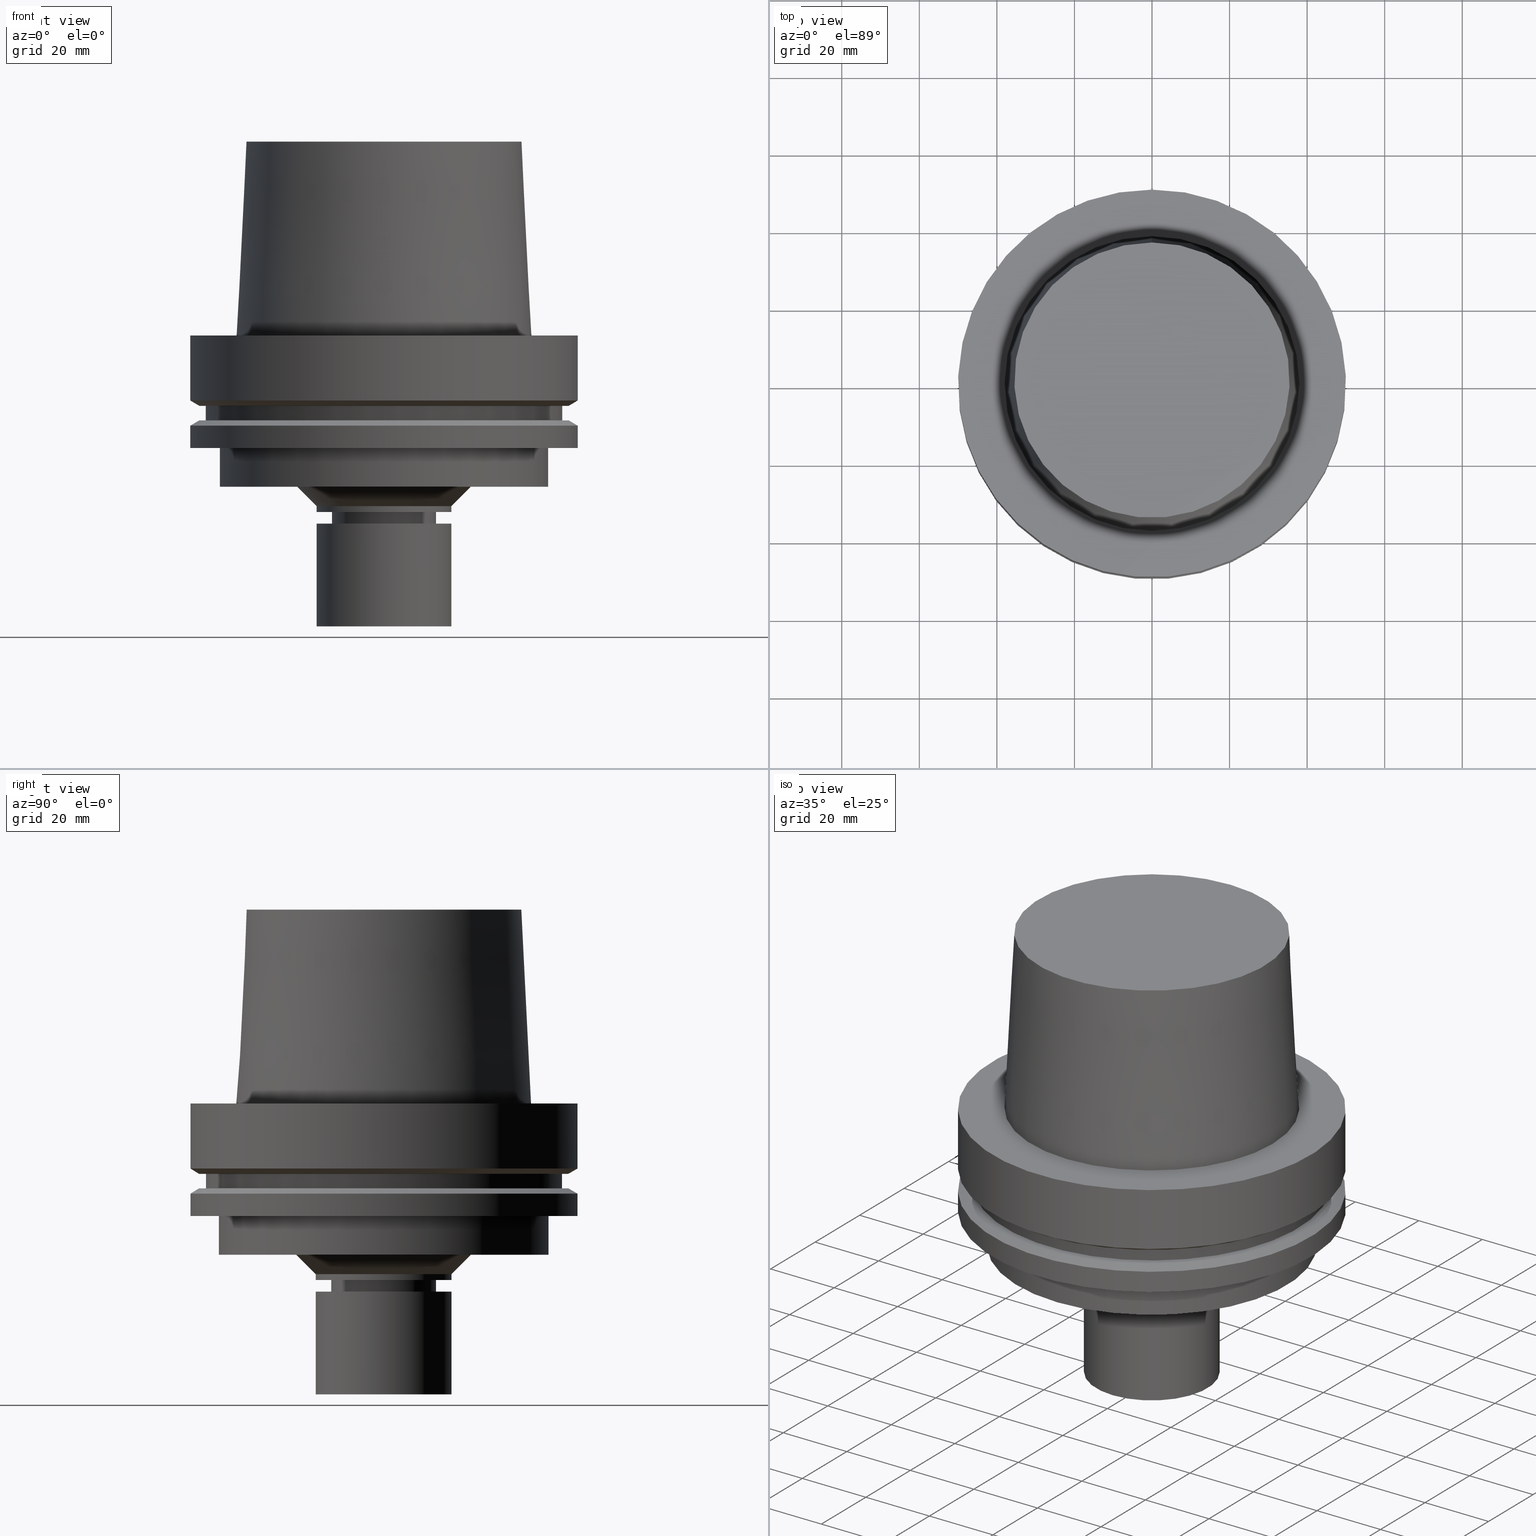
[diagram: canonical four-view strip — front | top / right | iso, engineering-drawing reading convention]
A machine part, canonical four-view strip (front | top / right | iso — engineering-drawing reading convention). The complete STEP part file that produces these views, byte-faithful:
ISO-10303-21;
HEADER;
FILE_DESCRIPTION((''),'1');
FILE_NAME('V:/90_\X2\53D65F9730C730FC30BF\X0\/00_\X2\6DE18DEF30C730FC30BF\X0\/ALL/HSK-BKUS\X2\52A05DE556F3\X0\_201801/HSK-A100-MEGAER/HSK-A100-MEGAER20-75NL.stp','2018-02-01T04:05:06',(''),(''),'Spatial Interop R21 SP3','Kubotek KeyCreator 2011 V10.0.2 (22737)',' ');
FILE_SCHEMA(('automotive_design'));
ENDSEC;
DATA;
#1=MECHANICAL_DESIGN_GEOMETRIC_PRESENTATION_REPRESENTATION(' ',(#14,#15,#16,#17,#18,#19,#20,#21,#22,#23,#24,#25,#26,#27,#28,#29,#30,#31,#32,#33,#34,#35,#36,#37,#38,#39,#40,#41,#42,#43,#44,#45,#46,#47,#48,#49,#50,#51,#52,#53,#54,#55,#56,#57,#58,#59,#60,#61),#10);
#2=PRODUCT_DEFINITION_CONTEXT('',#62,'design');
#3=APPLICATION_PROTOCOL_DEFINITION('INTERNATIONAL STANDARD','automotive_design',1994,#62);
#4=PRODUCT_CATEGORY_RELATIONSHIP('NONE','NONE',#63,#64);
#5=SHAPE_DEFINITION_REPRESENTATION(#65,#66);
#6=PRODUCT_DEFINITION_CONTEXT('',#67,'design');
#7=APPLICATION_PROTOCOL_DEFINITION('INTERNATIONAL STANDARD','automotive_design',1994,#67);
#8=PRODUCT_CATEGORY_RELATIONSHIP('NONE','NONE',#68,#69);
#9=SHAPE_DEFINITION_REPRESENTATION(#70,#71);
#10= (GEOMETRIC_REPRESENTATION_CONTEXT(3)GLOBAL_UNCERTAINTY_ASSIGNED_CONTEXT((#74))GLOBAL_UNIT_ASSIGNED_CONTEXT((#76,#77,#78))REPRESENTATION_CONTEXT('NONE','WORKSPACE'));
#14=STYLED_ITEM('',(#80,#81),#82);
#15=STYLED_ITEM('',(#83),#84);
#16=STYLED_ITEM('',(#85,#86),#87);
#17=STYLED_ITEM('',(#88,#89),#90);
#18=STYLED_ITEM('',(#91,#92),#93);
#19=STYLED_ITEM('',(#94,#95),#96);
#20=STYLED_ITEM('',(#97),#98);
#21=STYLED_ITEM('',(#99,#100),#101);
#22=STYLED_ITEM('',(#102,#103),#104);
#23=STYLED_ITEM('',(#105),#106);
#24=STYLED_ITEM('',(#107),#108);
#25=STYLED_ITEM('',(#109),#110);
#26=STYLED_ITEM('',(#111),#112);
#27=STYLED_ITEM('',(#113,#114),#115);
#28=STYLED_ITEM('',(#116),#117);
#29=STYLED_ITEM('',(#118),#119);
#30=STYLED_ITEM('',(#120,#121),#122);
#31=STYLED_ITEM('',(#123,#124),#125);
#32=STYLED_ITEM('',(#126),#127);
#33=STYLED_ITEM('',(#128,#129),#130);
#34=STYLED_ITEM('',(#131),#132);
#35=STYLED_ITEM('',(#133),#134);
#36=STYLED_ITEM('',(#135,#136),#137);
#37=STYLED_ITEM('',(#138),#139);
#38=STYLED_ITEM('',(#140),#141);
#39=STYLED_ITEM('',(#142,#143),#144);
#40=STYLED_ITEM('',(#145,#146),#147);
#41=STYLED_ITEM('',(#148,#149),#150);
#42=STYLED_ITEM('',(#151,#152),#153);
#43=STYLED_ITEM('',(#154,#155),#156);
#44=STYLED_ITEM('',(#157),#158);
#45=STYLED_ITEM('',(#159),#160);
#46=STYLED_ITEM('',(#161),#162);
#47=STYLED_ITEM('',(#163),#164);
#48=STYLED_ITEM('',(#165),#166);
#49=STYLED_ITEM('',(#167,#168),#169);
#50=STYLED_ITEM('',(#170,#171),#172);
#51=STYLED_ITEM('',(#173),#174);
#52=STYLED_ITEM('',(#175,#176),#177);
#53=STYLED_ITEM('',(#178,#179),#180);
#54=STYLED_ITEM('',(#181),#182);
#55=STYLED_ITEM('',(#183,#184),#185);
#56=STYLED_ITEM('',(#186,#187),#188);
#57=STYLED_ITEM('',(#189,#190),#191);
#58=STYLED_ITEM('',(#192),#193);
#59=STYLED_ITEM('',(#194,#195),#196);
#60=STYLED_ITEM('',(#197),#198);
#61=STYLED_ITEM('',(#199,#200),#201);
#62=APPLICATION_CONTEXT(' ');
#63=PRODUCT_CATEGORY('part','NONE');
#64=PRODUCT_RELATED_PRODUCT_CATEGORY('detail',' ',(#202));
#65=PRODUCT_DEFINITION_SHAPE('NONE','NONE',#203);
#66=ADVANCED_BREP_SHAPE_REPRESENTATION('Unnamed[1]',(#150,#204),#10);
#67=APPLICATION_CONTEXT(' ');
#68=PRODUCT_CATEGORY('part','NONE');
#69=PRODUCT_RELATED_PRODUCT_CATEGORY('detail',' ',(#205));
#70=PRODUCT_DEFINITION_SHAPE('NONE','NONE',#206);
#71=ADVANCED_BREP_SHAPE_REPRESENTATION('Unnamed[1]',(#191,#207),#10);
#74=UNCERTAINTY_MEASURE_WITH_UNIT(LENGTH_MEASURE(1.0E-006),#76,'','');
#76= (CONVERSION_BASED_UNIT('MILLIMETRE',#210)LENGTH_UNIT()NAMED_UNIT(#213));
#77= (NAMED_UNIT(#215)PLANE_ANGLE_UNIT()SI_UNIT($,.RADIAN.));
#78= (NAMED_UNIT(#215)SOLID_ANGLE_UNIT()SI_UNIT($,.STERADIAN.));
#80=PRESENTATION_STYLE_ASSIGNMENT((#221));
#81=PRESENTATION_STYLE_ASSIGNMENT((#222));
#82=ADVANCED_FACE('Unnamed[1]',(#223,#224),#225,.T.);
#83=PRESENTATION_STYLE_ASSIGNMENT((#226));
#84=EDGE_CURVE('Unnamed[1]',#227,#227,#228,.T.);
#85=PRESENTATION_STYLE_ASSIGNMENT((#229));
#86=PRESENTATION_STYLE_ASSIGNMENT((#230));
#87=ADVANCED_FACE('Unnamed[1]',(#231),#232,.T.);
#88=PRESENTATION_STYLE_ASSIGNMENT((#233));
#89=PRESENTATION_STYLE_ASSIGNMENT((#234));
#90=ADVANCED_FACE('Unnamed[1]',(#235,#236),#237,.T.);
#91=PRESENTATION_STYLE_ASSIGNMENT((#238));
#92=PRESENTATION_STYLE_ASSIGNMENT((#239));
#93=ADVANCED_FACE('Unnamed[1]',(#240,#241),#242,.T.);
#94=PRESENTATION_STYLE_ASSIGNMENT((#243));
#95=PRESENTATION_STYLE_ASSIGNMENT((#244));
#96=ADVANCED_FACE('Unnamed[1]',(#245,#246),#247,.T.);
#97=PRESENTATION_STYLE_ASSIGNMENT((#248));
#98=EDGE_CURVE('Unnamed[1]',#249,#249,#250,.T.);
#99=PRESENTATION_STYLE_ASSIGNMENT((#251));
#100=PRESENTATION_STYLE_ASSIGNMENT((#252));
#101=ADVANCED_FACE('Unnamed[1]',(#253),#254,.T.);
#102=PRESENTATION_STYLE_ASSIGNMENT((#255));
#103=PRESENTATION_STYLE_ASSIGNMENT((#256));
#104=ADVANCED_FACE('Unnamed[1]',(#257,#258),#259,.T.);
#105=PRESENTATION_STYLE_ASSIGNMENT((#260));
#106=EDGE_CURVE('Unnamed[1]',#261,#261,#262,.T.);
#107=PRESENTATION_STYLE_ASSIGNMENT((#263));
#108=EDGE_CURVE('Unnamed[1]',#264,#264,#265,.T.);
#109=PRESENTATION_STYLE_ASSIGNMENT((#266));
#110=EDGE_CURVE('Unnamed[1]',#267,#267,#268,.T.);
#111=PRESENTATION_STYLE_ASSIGNMENT((#269));
#112=EDGE_CURVE('Unnamed[1]',#270,#270,#271,.T.);
#113=PRESENTATION_STYLE_ASSIGNMENT((#272));
#114=PRESENTATION_STYLE_ASSIGNMENT((#273));
#115=ADVANCED_FACE('Unnamed[1]',(#274,#275),#276,.T.);
#116=PRESENTATION_STYLE_ASSIGNMENT((#277));
#117=EDGE_CURVE('Unnamed[1]',#278,#278,#279,.T.);
#118=PRESENTATION_STYLE_ASSIGNMENT((#280));
#119=EDGE_CURVE('Unnamed[1]',#281,#281,#282,.T.);
#120=PRESENTATION_STYLE_ASSIGNMENT((#283));
#121=PRESENTATION_STYLE_ASSIGNMENT((#284));
#122=ADVANCED_FACE('Unnamed[1]',(#285),#286,.T.);
#123=PRESENTATION_STYLE_ASSIGNMENT((#287));
#124=PRESENTATION_STYLE_ASSIGNMENT((#288));
#125=ADVANCED_FACE('Unnamed[1]',(#289,#290),#291,.T.);
#126=PRESENTATION_STYLE_ASSIGNMENT((#292));
#127=EDGE_CURVE('Unnamed[1]',#293,#293,#294,.T.);
#128=PRESENTATION_STYLE_ASSIGNMENT((#295));
#129=PRESENTATION_STYLE_ASSIGNMENT((#296));
#130=ADVANCED_FACE('Unnamed[1]',(#297,#298),#299,.T.);
#131=PRESENTATION_STYLE_ASSIGNMENT((#300));
#132=EDGE_CURVE('Unnamed[1]',#301,#301,#302,.T.);
#133=PRESENTATION_STYLE_ASSIGNMENT((#303));
#134=EDGE_CURVE('Unnamed[1]',#304,#304,#305,.T.);
#135=PRESENTATION_STYLE_ASSIGNMENT((#306));
#136=PRESENTATION_STYLE_ASSIGNMENT((#307));
#137=ADVANCED_FACE('Unnamed[1]',(#308,#309),#310,.T.);
#138=PRESENTATION_STYLE_ASSIGNMENT((#311));
#139=EDGE_CURVE('Unnamed[1]',#312,#312,#313,.T.);
#140=PRESENTATION_STYLE_ASSIGNMENT((#314));
#141=EDGE_CURVE('Unnamed[1]',#315,#315,#316,.T.);
#142=PRESENTATION_STYLE_ASSIGNMENT((#317));
#143=PRESENTATION_STYLE_ASSIGNMENT((#318));
#144=ADVANCED_FACE('Unnamed[1]',(#319,#320),#321,.T.);
#145=PRESENTATION_STYLE_ASSIGNMENT((#322));
#146=PRESENTATION_STYLE_ASSIGNMENT((#323));
#147=ADVANCED_FACE('Unnamed[1]',(#324,#325),#326,.T.);
#148=PRESENTATION_STYLE_ASSIGNMENT((#327));
#149=PRESENTATION_STYLE_ASSIGNMENT((#328));
#150=MANIFOLD_SOLID_BREP('Unnamed[1]',#329);
#151=PRESENTATION_STYLE_ASSIGNMENT((#330));
#152=PRESENTATION_STYLE_ASSIGNMENT((#331));
#153=ADVANCED_FACE('Unnamed[1]',(#332),#333,.T.);
#154=PRESENTATION_STYLE_ASSIGNMENT((#334));
#155=PRESENTATION_STYLE_ASSIGNMENT((#335));
#156=ADVANCED_FACE('Unnamed[1]',(#336,#337),#338,.T.);
#157=PRESENTATION_STYLE_ASSIGNMENT((#339));
#158=EDGE_CURVE('Unnamed[1]',#340,#340,#341,.T.);
#159=PRESENTATION_STYLE_ASSIGNMENT((#342));
#160=EDGE_CURVE('Unnamed[1]',#343,#343,#344,.T.);
#161=PRESENTATION_STYLE_ASSIGNMENT((#345));
#162=EDGE_CURVE('Unnamed[1]',#346,#346,#347,.T.);
#163=PRESENTATION_STYLE_ASSIGNMENT((#348));
#164=EDGE_CURVE('Unnamed[1]',#349,#349,#350,.T.);
#165=PRESENTATION_STYLE_ASSIGNMENT((#351));
#166=EDGE_CURVE('Unnamed[1]',#352,#352,#353,.T.);
#167=PRESENTATION_STYLE_ASSIGNMENT((#354));
#168=PRESENTATION_STYLE_ASSIGNMENT((#355));
#169=ADVANCED_FACE('Unnamed[1]',(#356,#357),#358,.T.);
#170=PRESENTATION_STYLE_ASSIGNMENT((#359));
#171=PRESENTATION_STYLE_ASSIGNMENT((#360));
#172=ADVANCED_FACE('Unnamed[1]',(#361,#362),#363,.T.);
#173=PRESENTATION_STYLE_ASSIGNMENT((#364));
#174=EDGE_CURVE('Unnamed[1]',#365,#365,#366,.T.);
#175=PRESENTATION_STYLE_ASSIGNMENT((#367));
#176=PRESENTATION_STYLE_ASSIGNMENT((#368));
#177=ADVANCED_FACE('Unnamed[1]',(#369,#370),#371,.T.);
#178=PRESENTATION_STYLE_ASSIGNMENT((#372));
#179=PRESENTATION_STYLE_ASSIGNMENT((#373));
#180=ADVANCED_FACE('Unnamed[1]',(#374,#375),#376,.T.);
#181=PRESENTATION_STYLE_ASSIGNMENT((#377));
#182=EDGE_CURVE('Unnamed[1]',#378,#378,#379,.T.);
#183=PRESENTATION_STYLE_ASSIGNMENT((#380));
#184=PRESENTATION_STYLE_ASSIGNMENT((#381));
#185=ADVANCED_FACE('Unnamed[1]',(#382,#383),#384,.T.);
#186=PRESENTATION_STYLE_ASSIGNMENT((#385));
#187=PRESENTATION_STYLE_ASSIGNMENT((#386));
#188=ADVANCED_FACE('Unnamed[1]',(#387,#388),#389,.T.);
#189=PRESENTATION_STYLE_ASSIGNMENT((#390));
#190=PRESENTATION_STYLE_ASSIGNMENT((#391));
#191=MANIFOLD_SOLID_BREP('Unnamed[1]',#392);
#192=PRESENTATION_STYLE_ASSIGNMENT((#393));
#193=EDGE_CURVE('Unnamed[1]',#394,#394,#395,.T.);
#194=PRESENTATION_STYLE_ASSIGNMENT((#396));
#195=PRESENTATION_STYLE_ASSIGNMENT((#397));
#196=ADVANCED_FACE('Unnamed[1]',(#398,#399),#400,.T.);
#197=PRESENTATION_STYLE_ASSIGNMENT((#401));
#198=EDGE_CURVE('Unnamed[1]',#402,#402,#403,.T.);
#199=PRESENTATION_STYLE_ASSIGNMENT((#404));
#200=PRESENTATION_STYLE_ASSIGNMENT((#405));
#201=ADVANCED_FACE('Unnamed[1]',(#406,#407),#408,.T.);
#202=PRODUCT('Unnamed[1]','Unnamed[1]','PART-Unnamed[1]-DESC',(#409));
#203=PRODUCT_DEFINITION('NONE','NONE',#410,#2);
#204=AXIS2_PLACEMENT_3D('',#411,#412,#413);
#205=PRODUCT('Unnamed[1]','Unnamed[1]','PART-Unnamed[1]-DESC',(#414));
#206=PRODUCT_DEFINITION('NONE','NONE',#415,#6);
#207=AXIS2_PLACEMENT_3D('',#416,#417,#418);
#210=LENGTH_MEASURE_WITH_UNIT(LENGTH_MEASURE(1.0),#419);
#213=DIMENSIONAL_EXPONENTS(1.0,0.0,0.0,0.0,0.0,0.0,0.0);
#215=DIMENSIONAL_EXPONENTS(0.0,0.0,0.0,0.0,0.0,0.0,0.0);
#221=SURFACE_STYLE_USAGE(.BOTH.,#420);
#222=CURVE_STYLE('',#421,POSITIVE_LENGTH_MEASURE(1000.0),#422);
#223=FACE_BOUND('',#423,.T.);
#224=FACE_BOUND('',#424,.T.);
#225=CYLINDRICAL_SURFACE('',#425,50.0);
#226=CURVE_STYLE('',#426,POSITIVE_LENGTH_MEASURE(1000.0),#427);
#227=VERTEX_POINT('',#428);
#228=CIRCLE('',#429,46.0);
#229=SURFACE_STYLE_USAGE(.BOTH.,#430);
#230=CURVE_STYLE('',#431,POSITIVE_LENGTH_MEASURE(1000.0),#432);
#231=FACE_OUTER_BOUND('',#433,.T.);
#232=PLANE('',#434);
#233=SURFACE_STYLE_USAGE(.BOTH.,#435);
#234=CURVE_STYLE('',#436,POSITIVE_LENGTH_MEASURE(1000.0),#437);
#235=FACE_BOUND('',#438,.T.);
#236=FACE_BOUND('',#439,.T.);
#237=CONICAL_SURFACE('',#440,13.0000000000002,1.04719755119485);
#238=SURFACE_STYLE_USAGE(.BOTH.,#441);
#239=CURVE_STYLE('',#442,POSITIVE_LENGTH_MEASURE(1000.0),#443);
#240=FACE_BOUND('',#444,.T.);
#241=FACE_BOUND('',#445,.T.);
#242=CONICAL_SURFACE('',#446,48.81129763,1.04719755328238);
#243=SURFACE_STYLE_USAGE(.BOTH.,#447);
#244=CURVE_STYLE('',#448,POSITIVE_LENGTH_MEASURE(1000.0),#449);
#245=FACE_BOUND('',#450,.T.);
#246=FACE_BOUND('',#451,.T.);
#247=CYLINDRICAL_SURFACE('',#452,50.0);
#248=CURVE_STYLE('',#453,POSITIVE_LENGTH_MEASURE(1000.0),#454);
#249=VERTEX_POINT('',#455);
#250=CIRCLE('',#456,22.4999999999999);
#251=SURFACE_STYLE_USAGE(.BOTH.,#457);
#252=CURVE_STYLE('',#458,POSITIVE_LENGTH_MEASURE(1000.0),#459);
#253=FACE_OUTER_BOUND('',#460,.T.);
#254=PLANE('',#461);
#255=SURFACE_STYLE_USAGE(.BOTH.,#462);
#256=CURVE_STYLE('',#463,POSITIVE_LENGTH_MEASURE(1000.0),#464);
#257=FACE_BOUND('',#465,.T.);
#258=FACE_OUTER_BOUND('',#466,.T.);
#259=PLANE('',#467);
#260=CURVE_STYLE('',#468,POSITIVE_LENGTH_MEASURE(1000.0),#469);
#261=VERTEX_POINT('',#470);
#262=CIRCLE('',#471,42.5);
#263=CURVE_STYLE('',#472,POSITIVE_LENGTH_MEASURE(1000.0),#473);
#264=VERTEX_POINT('',#474);
#265=CIRCLE('',#475,42.5);
#266=CURVE_STYLE('',#476,POSITIVE_LENGTH_MEASURE(1000.0),#477);
#267=VERTEX_POINT('',#478);
#268=CIRCLE('',#479,37.9999999999349);
#269=CURVE_STYLE('',#480,POSITIVE_LENGTH_MEASURE(1000.0),#481);
#270=VERTEX_POINT('',#482);
#271=CIRCLE('',#483,17.4999999999999);
#272=SURFACE_STYLE_USAGE(.BOTH.,#484);
#273=CURVE_STYLE('',#485,POSITIVE_LENGTH_MEASURE(1000.0),#486);
#274=FACE_BOUND('',#487,.T.);
#275=FACE_BOUND('',#488,.T.);
#276=CONICAL_SURFACE('',#489,36.7500000007484,0.0499583956894843);
#277=CURVE_STYLE('',#490,POSITIVE_LENGTH_MEASURE(1000.0),#491);
#278=VERTEX_POINT('',#492);
#279=CIRCLE('',#493,12.4999999999998);
#280=CURVE_STYLE('',#494,POSITIVE_LENGTH_MEASURE(1000.0),#495);
#281=VERTEX_POINT('',#496);
#282=CIRCLE('',#497,12.4999999999999);
#283=SURFACE_STYLE_USAGE(.BOTH.,#498);
#284=CURVE_STYLE('',#499,POSITIVE_LENGTH_MEASURE(1000.0),#500);
#285=FACE_OUTER_BOUND('',#501,.T.);
#286=PLANE('',#502);
#287=SURFACE_STYLE_USAGE(.BOTH.,#503);
#288=CURVE_STYLE('',#504,POSITIVE_LENGTH_MEASURE(1000.0),#505);
#289=FACE_BOUND('',#506,.T.);
#290=FACE_BOUND('',#507,.T.);
#291=CYLINDRICAL_SURFACE('',#508,46.0);
#292=CURVE_STYLE('',#509,POSITIVE_LENGTH_MEASURE(1000.0),#510);
#293=VERTEX_POINT('',#511);
#294=CIRCLE('',#512,11.3999999999978);
#295=SURFACE_STYLE_USAGE(.BOTH.,#513);
#296=CURVE_STYLE('',#514,POSITIVE_LENGTH_MEASURE(1000.0),#515);
#297=FACE_OUTER_BOUND('',#516,.T.);
#298=FACE_BOUND('',#517,.T.);
#299=PLANE('',#518);
#300=CURVE_STYLE('',#519,POSITIVE_LENGTH_MEASURE(1000.0),#520);
#301=VERTEX_POINT('',#521);
#302=CIRCLE('',#522,50.0);
#303=CURVE_STYLE('',#523,POSITIVE_LENGTH_MEASURE(1000.0),#524);
#304=VERTEX_POINT('',#525);
#305=CIRCLE('',#526,47.62259526);
#306=SURFACE_STYLE_USAGE(.BOTH.,#527);
#307=CURVE_STYLE('',#528,POSITIVE_LENGTH_MEASURE(1000.0),#529);
#308=FACE_BOUND('',#530,.T.);
#309=FACE_BOUND('',#531,.T.);
#310=CYLINDRICAL_SURFACE('',#532,17.4999999999999);
#311=CURVE_STYLE('',#533,POSITIVE_LENGTH_MEASURE(1000.0),#534);
#312=VERTEX_POINT('',#535);
#313=CIRCLE('',#536,50.0);
#314=CURVE_STYLE('',#537,POSITIVE_LENGTH_MEASURE(1000.0),#538);
#315=VERTEX_POINT('',#539);
#316=CIRCLE('',#540,13.5000000000005);
#317=SURFACE_STYLE_USAGE(.BOTH.,#541);
#318=CURVE_STYLE('',#542,POSITIVE_LENGTH_MEASURE(1000.0),#543);
#319=FACE_BOUND('',#544,.T.);
#320=FACE_OUTER_BOUND('',#545,.T.);
#321=PLANE('',#546);
#322=SURFACE_STYLE_USAGE(.BOTH.,#547);
#323=CURVE_STYLE('',#548,POSITIVE_LENGTH_MEASURE(1000.0),#549);
#324=FACE_BOUND('',#550,.T.);
#325=FACE_OUTER_BOUND('',#551,.T.);
#326=PLANE('',#552);
#327=SURFACE_STYLE_USAGE(.BOTH.,#553);
#328=CURVE_STYLE('',#554,POSITIVE_LENGTH_MEASURE(1000.0),#555);
#329=CLOSED_SHELL('',(#153,#115,#177,#82,#93,#156,#125,#130,#188,#96,#104,#180,#147,#196,#137,#144,#185,#90,#172,#169,#101));
#330=SURFACE_STYLE_USAGE(.BOTH.,#556);
#331=CURVE_STYLE('',#557,POSITIVE_LENGTH_MEASURE(1000.0),#558);
#332=FACE_OUTER_BOUND('',#559,.T.);
#333=PLANE('',#560);
#334=SURFACE_STYLE_USAGE(.BOTH.,#561);
#335=CURVE_STYLE('',#562,POSITIVE_LENGTH_MEASURE(1000.0),#563);
#336=FACE_BOUND('',#564,.T.);
#337=FACE_OUTER_BOUND('',#565,.T.);
#338=PLANE('',#566);
#339=CURVE_STYLE('',#567,POSITIVE_LENGTH_MEASURE(1000.0),#568);
#340=VERTEX_POINT('',#569);
#341=CIRCLE('',#570,50.0);
#342=CURVE_STYLE('',#571,POSITIVE_LENGTH_MEASURE(1000.0),#572);
#343=VERTEX_POINT('',#573);
#344=CIRCLE('',#574,17.5);
#345=CURVE_STYLE('',#575,POSITIVE_LENGTH_MEASURE(1000.0),#576);
#346=VERTEX_POINT('',#577);
#347=CIRCLE('',#578,50.0);
#348=CURVE_STYLE('',#579,POSITIVE_LENGTH_MEASURE(1000.0),#580);
#349=VERTEX_POINT('',#581);
#350=CIRCLE('',#582,47.62259526);
#351=CURVE_STYLE('',#583,POSITIVE_LENGTH_MEASURE(1000.0),#584);
#352=VERTEX_POINT('',#585);
#353=CIRCLE('',#586,13.4999999999908);
#354=SURFACE_STYLE_USAGE(.BOTH.,#587);
#355=CURVE_STYLE('',#588,POSITIVE_LENGTH_MEASURE(1000.0),#589);
#356=FACE_BOUND('',#590,.T.);
#357=FACE_BOUND('',#591,.T.);
#358=CONICAL_SURFACE('',#592,11.9499999999988,0.52359877559866);
#359=SURFACE_STYLE_USAGE(.BOTH.,#593);
#360=CURVE_STYLE('',#594,POSITIVE_LENGTH_MEASURE(1000.0),#595);
#361=FACE_BOUND('',#596,.T.);
#362=FACE_BOUND('',#597,.T.);
#363=CYLINDRICAL_SURFACE('',#598,12.4999999999999);
#364=CURVE_STYLE('',#599,POSITIVE_LENGTH_MEASURE(1000.0),#600);
#365=VERTEX_POINT('',#601);
#366=CIRCLE('',#602,17.5);
#367=SURFACE_STYLE_USAGE(.BOTH.,#603);
#368=CURVE_STYLE('',#604,POSITIVE_LENGTH_MEASURE(1000.0),#605);
#369=FACE_OUTER_BOUND('',#606,.T.);
#370=FACE_BOUND('',#607,.T.);
#371=PLANE('',#608);
#372=SURFACE_STYLE_USAGE(.BOTH.,#609);
#373=CURVE_STYLE('',#610,POSITIVE_LENGTH_MEASURE(1000.0),#611);
#374=FACE_BOUND('',#612,.T.);
#375=FACE_BOUND('',#613,.T.);
#376=CYLINDRICAL_SURFACE('',#614,42.5);
#377=CURVE_STYLE('',#615,POSITIVE_LENGTH_MEASURE(1000.0),#616);
#378=VERTEX_POINT('',#617);
#379=CIRCLE('',#618,17.5);
#380=SURFACE_STYLE_USAGE(.BOTH.,#619);
#381=CURVE_STYLE('',#620,POSITIVE_LENGTH_MEASURE(1000.0),#621);
#382=FACE_BOUND('',#622,.T.);
#383=FACE_BOUND('',#623,.T.);
#384=CYLINDRICAL_SURFACE('',#624,13.4999999999956);
#385=SURFACE_STYLE_USAGE(.BOTH.,#625);
#386=CURVE_STYLE('',#626,POSITIVE_LENGTH_MEASURE(1000.0),#627);
#387=FACE_BOUND('',#628,.T.);
#388=FACE_BOUND('',#629,.T.);
#389=CONICAL_SURFACE('',#630,48.81129763,1.04719755328238);
#390=SURFACE_STYLE_USAGE(.BOTH.,#631);
#391=CURVE_STYLE('',#632,POSITIVE_LENGTH_MEASURE(1000.0),#633);
#392=CLOSED_SHELL('',(#122,#87,#201));
#393=CURVE_STYLE('',#634,POSITIVE_LENGTH_MEASURE(1000.0),#635);
#394=VERTEX_POINT('',#636);
#395=CIRCLE('',#637,35.5000000015618);
#396=SURFACE_STYLE_USAGE(.BOTH.,#638);
#397=CURVE_STYLE('',#639,POSITIVE_LENGTH_MEASURE(1000.0),#640);
#398=FACE_BOUND('',#641,.T.);
#399=FACE_BOUND('',#642,.T.);
#400=CONICAL_SURFACE('',#643,19.9999999999999,0.785398163397451);
#401=CURVE_STYLE('',#644,POSITIVE_LENGTH_MEASURE(1000.0),#645);
#402=VERTEX_POINT('',#646);
#403=CIRCLE('',#647,46.0);
#404=SURFACE_STYLE_USAGE(.BOTH.,#648);
#405=CURVE_STYLE('',#649,POSITIVE_LENGTH_MEASURE(1000.0),#650);
#406=FACE_BOUND('',#651,.T.);
#407=FACE_BOUND('',#652,.T.);
#408=CYLINDRICAL_SURFACE('',#653,17.5);
#409=PRODUCT_CONTEXT('',#62,'mechanical');
#410=PRODUCT_DEFINITION_FORMATION_WITH_SPECIFIED_SOURCE(' ','NONE',#202,.NOT_KNOWN.);
#411=CARTESIAN_POINT('',(0.0,0.0,0.0));
#412=DIRECTION('',(0.0,0.0,1.0));
#413=DIRECTION('',(1.0,0.0,0.0));
#414=PRODUCT_CONTEXT('',#67,'mechanical');
#415=PRODUCT_DEFINITION_FORMATION_WITH_SPECIFIED_SOURCE(' ','NONE',#205,.NOT_KNOWN.);
#416=CARTESIAN_POINT('',(0.0,0.0,0.0));
#417=DIRECTION('',(0.0,0.0,1.0));
#418=DIRECTION('',(1.0,0.0,0.0));
#419= (NAMED_UNIT(#213)LENGTH_UNIT()SI_UNIT(.MILLI.,.METRE.));
#420=SURFACE_SIDE_STYLE('',(#655));
#421=DRAUGHTING_PRE_DEFINED_CURVE_FONT('continuous');
#422=COLOUR_RGB('',0.0,1.0,0.0);
#423=EDGE_LOOP('',(#656));
#424=EDGE_LOOP('',(#657));
#425=AXIS2_PLACEMENT_3D('',#658,#659,#660);
#426=DRAUGHTING_PRE_DEFINED_CURVE_FONT('continuous');
#427=COLOUR_RGB('',0.0,1.0,0.0);
#428=CARTESIAN_POINT('',(1.10983616172729E-015,46.0,-18.125));
#429=AXIS2_PLACEMENT_3D('',#661,#662,#663);
#430=SURFACE_SIDE_STYLE('',(#664));
#431=DRAUGHTING_PRE_DEFINED_CURVE_FONT('continuous');
#432=COLOUR_RGB('',0.0,1.0,0.0);
#433=EDGE_LOOP('',(#665));
#434=AXIS2_PLACEMENT_3D('',#666,#667,#668);
#435=SURFACE_SIDE_STYLE('',(#669));
#436=DRAUGHTING_PRE_DEFINED_CURVE_FONT('continuous');
#437=COLOUR_RGB('',0.0,1.0,0.0);
#438=EDGE_LOOP('',(#670));
#439=EDGE_LOOP('',(#671));
#440=AXIS2_PLACEMENT_3D('',#672,#673,#674);
#441=SURFACE_SIDE_STYLE('',(#675));
#442=DRAUGHTING_PRE_DEFINED_CURVE_FONT('continuous');
#443=COLOUR_RGB('',0.0,1.0,0.0);
#444=EDGE_LOOP('',(#676));
#445=EDGE_LOOP('',(#677));
#446=AXIS2_PLACEMENT_3D('',#678,#679,#680);
#447=SURFACE_SIDE_STYLE('',(#681));
#448=DRAUGHTING_PRE_DEFINED_CURVE_FONT('continuous');
#449=COLOUR_RGB('',0.0,1.0,0.0);
#450=EDGE_LOOP('',(#682));
#451=EDGE_LOOP('',(#683));
#452=AXIS2_PLACEMENT_3D('',#684,#685,#686);
#453=DRAUGHTING_PRE_DEFINED_CURVE_FONT('continuous');
#454=COLOUR_RGB('',0.0,1.0,0.0);
#455=CARTESIAN_POINT('',(2.38806125833734E-015,22.4999999999999,-39.0));
#456=AXIS2_PLACEMENT_3D('',#687,#688,#689);
#457=SURFACE_SIDE_STYLE('',(#690));
#458=DRAUGHTING_PRE_DEFINED_CURVE_FONT('continuous');
#459=COLOUR_RGB('',0.0,1.0,0.0);
#460=EDGE_LOOP('',(#691));
#461=AXIS2_PLACEMENT_3D('',#692,#693,#694);
#462=SURFACE_SIDE_STYLE('',(#695));
#463=DRAUGHTING_PRE_DEFINED_CURVE_FONT('continuous');
#464=COLOUR_RGB('',0.0,1.0,0.0);
#465=EDGE_LOOP('',(#696));
#466=EDGE_LOOP('',(#697));
#467=AXIS2_PLACEMENT_3D('',#698,#699,#700);
#468=DRAUGHTING_PRE_DEFINED_CURVE_FONT('continuous');
#469=COLOUR_RGB('',0.0,1.0,0.0);
#470=CARTESIAN_POINT('',(1.77573785876366E-015,42.5,-29.0));
#471=AXIS2_PLACEMENT_3D('',#701,#702,#703);
#472=DRAUGHTING_PRE_DEFINED_CURVE_FONT('continuous');
#473=COLOUR_RGB('',0.0,1.0,0.0);
#474=CARTESIAN_POINT('',(2.38806125833734E-015,42.5,-39.0));
#475=AXIS2_PLACEMENT_3D('',#704,#705,#706);
#476=DRAUGHTING_PRE_DEFINED_CURVE_FONT('continuous');
#477=COLOUR_RGB('',0.0,1.0,0.0);
#478=CARTESIAN_POINT('',(-3.3636548776863E-032,37.9999999999349,-2.44634216324803E-015));
#479=AXIS2_PLACEMENT_3D('',#707,#708,#709);
#480=DRAUGHTING_PRE_DEFINED_CURVE_FONT('continuous');
#481=COLOUR_RGB('',0.0,1.0,0.0);
#482=CARTESIAN_POINT('',(2.69422295812418E-015,17.4999999999999,-44.0));
#483=AXIS2_PLACEMENT_3D('',#710,#711,#712);
#484=SURFACE_SIDE_STYLE('',(#713));
#485=DRAUGHTING_PRE_DEFINED_CURVE_FONT('continuous');
#486=COLOUR_RGB('',0.0,1.0,0.0);
#487=EDGE_LOOP('',(#714));
#488=EDGE_LOOP('',(#715));
#489=AXIS2_PLACEMENT_3D('',#716,#717,#718);
#490=DRAUGHTING_PRE_DEFINED_CURVE_FONT('continuous');
#491=COLOUR_RGB('',0.0,1.0,0.0);
#492=CARTESIAN_POINT('',(3.87568528896053E-015,12.4999999999998,-63.2947441116726));
#493=AXIS2_PLACEMENT_3D('',#719,#720,#721);
#494=DRAUGHTING_PRE_DEFINED_CURVE_FONT('continuous');
#495=COLOUR_RGB('',0.0,1.0,0.0);
#496=CARTESIAN_POINT('',(3.17793855151861E-015,12.4999999999999,-51.8996751345975));
#497=AXIS2_PLACEMENT_3D('',#722,#723,#724);
#498=SURFACE_SIDE_STYLE('',(#725));
#499=DRAUGHTING_PRE_DEFINED_CURVE_FONT('continuous');
#500=COLOUR_RGB('',0.0,1.0,0.0);
#501=EDGE_LOOP('',(#726));
#502=AXIS2_PLACEMENT_3D('',#727,#728,#729);
#503=SURFACE_SIDE_STYLE('',(#730));
#504=DRAUGHTING_PRE_DEFINED_CURVE_FONT('continuous');
#505=COLOUR_RGB('',0.0,1.0,0.0);
#506=EDGE_LOOP('',(#731));
#507=EDGE_LOOP('',(#732));
#508=AXIS2_PLACEMENT_3D('',#733,#734,#735);
#509=DRAUGHTING_PRE_DEFINED_CURVE_FONT('continuous');
#510=COLOUR_RGB('',0.0,1.0,0.0);
#511=CARTESIAN_POINT('',(3.99234856522039E-015,11.3999999999978,-65.2000000000003));
#512=AXIS2_PLACEMENT_3D('',#736,#737,#738);
#513=SURFACE_SIDE_STYLE('',(#739));
#514=DRAUGHTING_PRE_DEFINED_CURVE_FONT('continuous');
#515=COLOUR_RGB('',0.0,1.0,0.0);
#516=EDGE_LOOP('',(#740));
#517=EDGE_LOOP('',(#741));
#518=AXIS2_PLACEMENT_3D('',#742,#743,#744);
#519=DRAUGHTING_PRE_DEFINED_CURVE_FONT('continuous');
#520=COLOUR_RGB('',0.0,1.0,0.0);
#521=CARTESIAN_POINT('',(1.0257889421431E-015,50.0,-16.75240474));
#522=AXIS2_PLACEMENT_3D('',#745,#746,#747);
#523=DRAUGHTING_PRE_DEFINED_CURVE_FONT('continuous');
#524=COLOUR_RGB('',0.0,1.0,0.0);
#525=CARTESIAN_POINT('',(1.10983616172729E-015,47.62259526,-18.125));
#526=AXIS2_PLACEMENT_3D('',#748,#749,#750);
#527=SURFACE_SIDE_STYLE('',(#751));
#528=DRAUGHTING_PRE_DEFINED_CURVE_FONT('continuous');
#529=COLOUR_RGB('',0.0,1.0,0.0);
#530=EDGE_LOOP('',(#752));
#531=EDGE_LOOP('',(#753));
#532=AXIS2_PLACEMENT_3D('',#754,#755,#756);
#533=DRAUGHTING_PRE_DEFINED_CURVE_FONT('continuous');
#534=COLOUR_RGB('',0.0,1.0,0.0);
#535=CARTESIAN_POINT('',(1.77573785876366E-015,50.0,-29.0));
#536=AXIS2_PLACEMENT_3D('',#757,#758,#759);
#537=DRAUGHTING_PRE_DEFINED_CURVE_FONT('continuous');
#538=COLOUR_RGB('',0.0,1.0,0.0);
#539=CARTESIAN_POINT('',(3.14258604356096E-015,13.5000000000005,-51.3223248654052));
#540=AXIS2_PLACEMENT_3D('',#760,#761,#762);
#541=SURFACE_SIDE_STYLE('',(#763));
#542=DRAUGHTING_PRE_DEFINED_CURVE_FONT('continuous');
#543=COLOUR_RGB('',0.0,1.0,0.0);
#544=EDGE_LOOP('',(#764));
#545=EDGE_LOOP('',(#765));
#546=AXIS2_PLACEMENT_3D('',#766,#767,#768);
#547=SURFACE_SIDE_STYLE('',(#769));
#548=DRAUGHTING_PRE_DEFINED_CURVE_FONT('continuous');
#549=COLOUR_RGB('',0.0,1.0,0.0);
#550=EDGE_LOOP('',(#770));
#551=EDGE_LOOP('',(#771));
#552=AXIS2_PLACEMENT_3D('',#772,#773,#774);
#553=SURFACE_SIDE_STYLE('',(#775));
#554=DRAUGHTING_PRE_DEFINED_CURVE_FONT('continuous');
#555=COLOUR_RGB('',0.0,1.0,0.0);
#556=SURFACE_SIDE_STYLE('',(#776));
#557=DRAUGHTING_PRE_DEFINED_CURVE_FONT('continuous');
#558=COLOUR_RGB('',0.0,1.0,0.0);
#559=EDGE_LOOP('',(#777));
#560=AXIS2_PLACEMENT_3D('',#778,#779,#780);
#561=SURFACE_SIDE_STYLE('',(#781));
#562=DRAUGHTING_PRE_DEFINED_CURVE_FONT('continuous');
#563=COLOUR_RGB('',0.0,1.0,0.0);
#564=EDGE_LOOP('',(#782));
#565=EDGE_LOOP('',(#783));
#566=AXIS2_PLACEMENT_3D('',#784,#785,#786);
#567=DRAUGHTING_PRE_DEFINED_CURVE_FONT('continuous');
#568=COLOUR_RGB('',0.0,1.0,0.0);
#569=CARTESIAN_POINT('',(1.42350465615161E-015,50.0,-23.24759526));
#570=AXIS2_PLACEMENT_3D('',#787,#788,#789);
#571=DRAUGHTING_PRE_DEFINED_CURVE_FONT('continuous');
#572=COLOUR_RGB('',0.0,1.0,0.0);
#573=CARTESIAN_POINT('',(2.78607146806021E-015,17.5,-45.4999999999998));
#574=AXIS2_PLACEMENT_3D('',#790,#791,#792);
#575=DRAUGHTING_PRE_DEFINED_CURVE_FONT('continuous');
#576=COLOUR_RGB('',0.0,1.0,0.0);
#577=CARTESIAN_POINT('',(-1.81547968506605E-031,50.0,-9.76766004263236E-016));
#578=AXIS2_PLACEMENT_3D('',#793,#794,#795);
#579=DRAUGHTING_PRE_DEFINED_CURVE_FONT('continuous');
#580=COLOUR_RGB('',0.0,1.0,0.0);
#581=CARTESIAN_POINT('',(1.33945743656742E-015,47.62259526,-21.875));
#582=AXIS2_PLACEMENT_3D('',#796,#797,#798);
#583=DRAUGHTING_PRE_DEFINED_CURVE_FONT('continuous');
#584=COLOUR_RGB('',0.0,1.0,0.0);
#585=CARTESIAN_POINT('',(2.78607146806022E-015,13.4999999999908,-45.4999999999998));
#586=AXIS2_PLACEMENT_3D('',#799,#800,#801);
#587=SURFACE_SIDE_STYLE('',(#802));
#588=DRAUGHTING_PRE_DEFINED_CURVE_FONT('continuous');
#589=COLOUR_RGB('',0.0,1.0,0.0);
#590=EDGE_LOOP('',(#803));
#591=EDGE_LOOP('',(#804));
#592=AXIS2_PLACEMENT_3D('',#805,#806,#807);
#593=SURFACE_SIDE_STYLE('',(#808));
#594=DRAUGHTING_PRE_DEFINED_CURVE_FONT('continuous');
#595=COLOUR_RGB('',0.0,1.0,0.0);
#596=EDGE_LOOP('',(#809));
#597=EDGE_LOOP('',(#810));
#598=AXIS2_PLACEMENT_3D('',#811,#812,#813);
#599=DRAUGHTING_PRE_DEFINED_CURVE_FONT('continuous');
#600=COLOUR_RGB('',0.0,1.0,0.0);
#601=CARTESIAN_POINT('',(4.59242549680257E-015,17.5,-74.9999999999999));
#602=AXIS2_PLACEMENT_3D('',#814,#815,#816);
#603=SURFACE_SIDE_STYLE('',(#817));
#604=DRAUGHTING_PRE_DEFINED_CURVE_FONT('continuous');
#605=COLOUR_RGB('',0.0,1.0,0.0);
#606=EDGE_LOOP('',(#818));
#607=EDGE_LOOP('',(#819));
#608=AXIS2_PLACEMENT_3D('',#820,#821,#822);
#609=SURFACE_SIDE_STYLE('',(#823));
#610=DRAUGHTING_PRE_DEFINED_CURVE_FONT('continuous');
#611=COLOUR_RGB('',0.0,1.0,0.0);
#612=EDGE_LOOP('',(#824));
#613=EDGE_LOOP('',(#825));
#614=AXIS2_PLACEMENT_3D('',#826,#827,#828);
#615=DRAUGHTING_PRE_DEFINED_CURVE_FONT('continuous');
#616=COLOUR_RGB('',0.0,1.0,0.0);
#617=CARTESIAN_POINT('',(2.96976942226369E-015,17.5,-48.5000152587891));
#618=AXIS2_PLACEMENT_3D('',#829,#830,#831);
#619=SURFACE_SIDE_STYLE('',(#832));
#620=DRAUGHTING_PRE_DEFINED_CURVE_FONT('continuous');
#621=COLOUR_RGB('',0.0,1.0,0.0);
#622=EDGE_LOOP('',(#833));
#623=EDGE_LOOP('',(#834));
#624=AXIS2_PLACEMENT_3D('',#835,#836,#837);
#625=SURFACE_SIDE_STYLE('',(#838));
#626=DRAUGHTING_PRE_DEFINED_CURVE_FONT('continuous');
#627=COLOUR_RGB('',0.0,1.0,0.0);
#628=EDGE_LOOP('',(#839));
#629=EDGE_LOOP('',(#840));
#630=AXIS2_PLACEMENT_3D('',#841,#842,#843);
#631=SURFACE_SIDE_STYLE('',(#844));
#632=DRAUGHTING_PRE_DEFINED_CURVE_FONT('continuous');
#633=COLOUR_RGB('',0.0,1.0,0.0);
#634=DRAUGHTING_PRE_DEFINED_CURVE_FONT('continuous');
#635=COLOUR_RGB('',0.0,1.0,0.0);
#636=CARTESIAN_POINT('',(-3.06161699786838E-015,35.5000000015618,50.0));
#637=AXIS2_PLACEMENT_3D('',#845,#846,#847);
#638=SURFACE_SIDE_STYLE('',(#848));
#639=DRAUGHTING_PRE_DEFINED_CURVE_FONT('continuous');
#640=COLOUR_RGB('',0.0,1.0,0.0);
#641=EDGE_LOOP('',(#849));
#642=EDGE_LOOP('',(#850));
#643=AXIS2_PLACEMENT_3D('',#851,#852,#853);
#644=DRAUGHTING_PRE_DEFINED_CURVE_FONT('continuous');
#645=COLOUR_RGB('',0.0,1.0,0.0);
#646=CARTESIAN_POINT('',(1.33945743656742E-015,46.0,-21.875));
#647=AXIS2_PLACEMENT_3D('',#854,#855,#856);
#648=SURFACE_SIDE_STYLE('',(#857));
#649=DRAUGHTING_PRE_DEFINED_CURVE_FONT('continuous');
#650=COLOUR_RGB('',0.0,1.0,0.0);
#651=EDGE_LOOP('',(#858));
#652=EDGE_LOOP('',(#859));
#653=AXIS2_PLACEMENT_3D('',#860,#861,#862);
#655=SURFACE_STYLE_FILL_AREA(#863);
#656=ORIENTED_EDGE('',*,*,#132,.F.);
#657=ORIENTED_EDGE('',*,*,#162,.T.);
#658=CARTESIAN_POINT('',(5.12894471071548E-016,1.0257889421431E-015,-8.37620236999999));
#659=DIRECTION('',(6.12323399573677E-017,1.22464679914735E-016,-1.0));
#660=DIRECTION('',(-1.23259516440783E-032,1.0,1.22464679914735E-016));
#661=CARTESIAN_POINT('',(1.10983616172729E-015,2.21967232345458E-015,-18.125));
#662=DIRECTION('',(6.12323399573677E-017,1.22464679914735E-016,-1.0));
#663=DIRECTION('',(-1.23259516440783E-032,1.0,1.22464679914735E-016));
#664=SURFACE_STYLE_FILL_AREA(#864);
#665=ORIENTED_EDGE('',*,*,#182,.F.);
#666=CARTESIAN_POINT('',(2.96976942226369E-015,8.75000000000001,-48.5000152587891));
#667=DIRECTION('',(-6.12323399573677E-017,-1.22464679914735E-016,1.0));
#668=DIRECTION('',(1.23259516440783E-032,-1.0,-1.22464679914735E-016));
#669=SURFACE_STYLE_FILL_AREA(#865);
#670=ORIENTED_EDGE('',*,*,#119,.F.);
#671=ORIENTED_EDGE('',*,*,#141,.T.);
#672=CARTESIAN_POINT('',(3.16026229753979E-015,6.32052459507957E-015,-51.6110000000014));
#673=DIRECTION('',(-6.12323399573677E-017,-1.22464679914735E-016,1.0));
#674=DIRECTION('',(-1.23259516440783E-032,1.0,1.22464679914735E-016));
#675=SURFACE_STYLE_FILL_AREA(#866);
#676=ORIENTED_EDGE('',*,*,#134,.F.);
#677=ORIENTED_EDGE('',*,*,#132,.T.);
#678=CARTESIAN_POINT('',(1.06781255193519E-015,2.13562510387039E-015,-17.43870237));
#679=DIRECTION('',(-6.12323399573677E-017,-1.22464679914735E-016,1.0));
#680=DIRECTION('',(-1.23259516440783E-032,1.0,1.22464679914735E-016));
#681=SURFACE_STYLE_FILL_AREA(#867);
#682=ORIENTED_EDGE('',*,*,#139,.F.);
#683=ORIENTED_EDGE('',*,*,#158,.T.);
#684=CARTESIAN_POINT('',(1.59962125745764E-015,3.19924251491527E-015,-26.12379763));
#685=DIRECTION('',(6.12323399573677E-017,1.22464679914735E-016,-1.0));
#686=DIRECTION('',(-1.23259516440783E-032,1.0,1.22464679914735E-016));
#687=CARTESIAN_POINT('',(2.38806125833734E-015,4.77612251667468E-015,-39.0));
#688=DIRECTION('',(6.12323399573677E-017,1.22464679914735E-016,-1.0));
#689=DIRECTION('',(-1.23259516440783E-032,1.0,1.22464679914735E-016));
#690=SURFACE_STYLE_FILL_AREA(#868);
#691=ORIENTED_EDGE('',*,*,#127,.T.);
#692=CARTESIAN_POINT('',(3.99234856522038E-015,5.69999999999888,-65.2000000000002));
#693=DIRECTION('',(6.12323399573677E-017,-1.73294621633192E-014,-1.0));
#694=DIRECTION('',(1.05629636573193E-030,1.0,-1.73294621633192E-014));
#695=SURFACE_STYLE_FILL_AREA(#869);
#696=ORIENTED_EDGE('',*,*,#106,.F.);
#697=ORIENTED_EDGE('',*,*,#139,.T.);
#698=CARTESIAN_POINT('',(1.77573785876366E-015,46.25,-29.0));
#699=DIRECTION('',(6.12323399573677E-017,1.22464679914735E-016,-1.0));
#700=DIRECTION('',(-1.23259516440783E-032,1.0,1.22464679914735E-016));
#701=CARTESIAN_POINT('',(1.77573785876366E-015,3.55147571752733E-015,-29.0));
#702=DIRECTION('',(6.12323399573677E-017,1.22464679914735E-016,-1.0));
#703=DIRECTION('',(-1.23259516440783E-032,1.0,1.22464679914735E-016));
#704=CARTESIAN_POINT('',(2.38806125833734E-015,4.77612251667468E-015,-39.0));
#705=DIRECTION('',(6.12323399573677E-017,1.22464679914735E-016,-1.0));
#706=DIRECTION('',(-1.23259516440783E-032,1.0,1.22464679914735E-016));
#707=CARTESIAN_POINT('',(0.0,0.0,0.0));
#708=DIRECTION('',(6.12323399573677E-017,1.22464679914735E-016,-1.0));
#709=DIRECTION('',(-1.23259516440783E-032,1.0,1.22464679914735E-016));
#710=CARTESIAN_POINT('',(2.69422295812418E-015,5.38844591624835E-015,-44.0));
#711=DIRECTION('',(6.12323399573676E-017,1.22464679914735E-016,-1.0));
#712=DIRECTION('',(-1.23259516440783E-032,1.0,1.22464679914735E-016));
#713=SURFACE_STYLE_FILL_AREA(#870);
#714=ORIENTED_EDGE('',*,*,#110,.F.);
#715=ORIENTED_EDGE('',*,*,#193,.T.);
#716=CARTESIAN_POINT('',(-1.53080849893419E-015,-3.06161699786838E-015,25.0));
#717=DIRECTION('',(6.12323399573676E-017,1.22464679914735E-016,-1.0));
#718=DIRECTION('',(-1.23259516440783E-032,1.0,1.22464679914735E-016));
#719=CARTESIAN_POINT('',(3.87568528896053E-015,7.75137057792106E-015,-63.2947441116726));
#720=DIRECTION('',(6.12323399573677E-017,1.22464679914735E-016,-1.0));
#721=DIRECTION('',(-1.23259516440783E-032,1.0,1.22464679914735E-016));
#722=CARTESIAN_POINT('',(3.17793855151861E-015,6.35587710303723E-015,-51.8996751345975));
#723=DIRECTION('',(6.12323399573677E-017,1.22464679914735E-016,-1.0));
#724=DIRECTION('',(-1.23259516440783E-032,1.0,1.22464679914735E-016));
#725=SURFACE_STYLE_FILL_AREA(#871);
#726=ORIENTED_EDGE('',*,*,#174,.T.);
#727=CARTESIAN_POINT('',(4.59242549680257E-015,8.75000000000001,-74.9999999999999));
#728=DIRECTION('',(6.12323399573677E-017,1.22464679914735E-016,-1.0));
#729=DIRECTION('',(-1.23259516440783E-032,1.0,1.22464679914735E-016));
#730=SURFACE_STYLE_FILL_AREA(#872);
#731=ORIENTED_EDGE('',*,*,#198,.F.);
#732=ORIENTED_EDGE('',*,*,#84,.T.);
#733=CARTESIAN_POINT('',(1.22464679914735E-015,2.44929359829471E-015,-20.0));
#734=DIRECTION('',(6.12323399573677E-017,1.22464679914735E-016,-1.0));
#735=DIRECTION('',(-1.23259516440783E-032,1.0,1.22464679914735E-016));
#736=CARTESIAN_POINT('',(3.99234856522039E-015,7.98469713044077E-015,-65.2000000000003));
#737=DIRECTION('',(6.12323399573676E-017,1.22464679914735E-016,-1.0));
#738=DIRECTION('',(-1.23259516440783E-032,1.0,1.22464679914735E-016));
#739=SURFACE_STYLE_FILL_AREA(#873);
#740=ORIENTED_EDGE('',*,*,#164,.F.);
#741=ORIENTED_EDGE('',*,*,#198,.T.);
#742=CARTESIAN_POINT('',(1.33945743656742E-015,46.81129763,-21.875));
#743=DIRECTION('',(-6.12323399573677E-017,-1.22464679914735E-016,1.0));
#744=DIRECTION('',(1.23259516440783E-032,-1.0,-1.22464679914735E-016));
#745=CARTESIAN_POINT('',(1.0257889421431E-015,2.05157788428619E-015,-16.75240474));
#746=DIRECTION('',(6.12323399573677E-017,1.22464679914735E-016,-1.0));
#747=DIRECTION('',(-1.23259516440783E-032,1.0,1.22464679914735E-016));
#748=CARTESIAN_POINT('',(1.10983616172729E-015,2.21967232345458E-015,-18.125));
#749=DIRECTION('',(6.12323399573676E-017,1.22464679914735E-016,-1.0));
#750=DIRECTION('',(-1.23259516440783E-032,1.0,1.22464679914735E-016));
#751=SURFACE_STYLE_FILL_AREA(#874);
#752=ORIENTED_EDGE('',*,*,#160,.F.);
#753=ORIENTED_EDGE('',*,*,#112,.T.);
#754=CARTESIAN_POINT('',(2.7401472130922E-015,5.48029442618439E-015,-44.7499999999999));
#755=DIRECTION('',(6.12323399573676E-017,1.22464679914735E-016,-1.0));
#756=DIRECTION('',(-1.23259516440783E-032,1.0,1.22464679914735E-016));
#757=CARTESIAN_POINT('',(1.77573785876366E-015,3.55147571752733E-015,-29.0));
#758=DIRECTION('',(6.12323399573677E-017,1.22464679914735E-016,-1.0));
#759=DIRECTION('',(-1.23259516440783E-032,1.0,1.22464679914735E-016));
#760=CARTESIAN_POINT('',(3.14258604356096E-015,6.28517208712191E-015,-51.3223248654052));
#761=DIRECTION('',(6.12323399573677E-017,1.22464679914735E-016,-1.0));
#762=DIRECTION('',(-1.23259516440783E-032,1.0,1.22464679914735E-016));
#763=SURFACE_STYLE_FILL_AREA(#875);
#764=ORIENTED_EDGE('',*,*,#166,.F.);
#765=ORIENTED_EDGE('',*,*,#160,.T.);
#766=CARTESIAN_POINT('',(2.78607146806022E-015,15.4999999999954,-45.4999999999998));
#767=DIRECTION('',(6.12323399573677E-017,1.22464679914735E-016,-1.0));
#768=DIRECTION('',(-1.23259516440783E-032,1.0,1.22464679914735E-016));
#769=SURFACE_STYLE_FILL_AREA(#876);
#770=ORIENTED_EDGE('',*,*,#98,.F.);
#771=ORIENTED_EDGE('',*,*,#108,.T.);
#772=CARTESIAN_POINT('',(2.38806125833734E-015,32.5,-39.0));
#773=DIRECTION('',(6.12323399573677E-017,8.33007415674832E-016,-1.0));
#774=DIRECTION('',(-5.58341459943786E-032,1.0,8.33007415674832E-016));
#775=SURFACE_STYLE_FILL_AREA(#877);
#776=SURFACE_STYLE_FILL_AREA(#878);
#777=ORIENTED_EDGE('',*,*,#193,.F.);
#778=CARTESIAN_POINT('',(-3.06161699786838E-015,17.7500000007809,50.0));
#779=DIRECTION('',(-6.12323399573677E-017,-1.22464679914735E-016,1.0));
#780=DIRECTION('',(1.23259516440783E-032,-1.0,-1.22464679914735E-016));
#781=SURFACE_STYLE_FILL_AREA(#879);
#782=ORIENTED_EDGE('',*,*,#84,.F.);
#783=ORIENTED_EDGE('',*,*,#134,.T.);
#784=CARTESIAN_POINT('',(1.10983616172729E-015,46.81129763,-18.125));
#785=DIRECTION('',(6.12323399573677E-017,1.22464679914735E-016,-1.0));
#786=DIRECTION('',(-1.23259516440783E-032,1.0,1.22464679914735E-016));
#787=CARTESIAN_POINT('',(1.42350465615161E-015,2.84700931230322E-015,-23.24759526));
#788=DIRECTION('',(6.12323399573677E-017,1.22464679914735E-016,-1.0));
#789=DIRECTION('',(-1.23259516440783E-032,1.0,1.22464679914735E-016));
#790=CARTESIAN_POINT('',(2.78607146806022E-015,5.57214293612043E-015,-45.4999999999998));
#791=DIRECTION('',(6.12323399573677E-017,1.22464679914735E-016,-1.0));
#792=DIRECTION('',(-1.23259516440783E-032,1.0,1.22464679914735E-016));
#793=CARTESIAN_POINT('',(0.0,0.0,0.0));
#794=DIRECTION('',(6.12323399573677E-017,1.22464679914735E-016,-1.0));
#795=DIRECTION('',(-1.23259516440783E-032,1.0,1.22464679914735E-016));
#796=CARTESIAN_POINT('',(1.33945743656742E-015,2.67891487313484E-015,-21.875));
#797=DIRECTION('',(6.12323399573676E-017,1.22464679914735E-016,-1.0));
#798=DIRECTION('',(-1.23259516440783E-032,1.0,1.22464679914735E-016));
#799=CARTESIAN_POINT('',(2.78607146806022E-015,5.57214293612043E-015,-45.4999999999998));
#800=DIRECTION('',(6.12323399573677E-017,1.22464679914735E-016,-1.0));
#801=DIRECTION('',(-1.23259516440783E-032,1.0,1.22464679914735E-016));
#802=SURFACE_STYLE_FILL_AREA(#880);
#803=ORIENTED_EDGE('',*,*,#127,.F.);
#804=ORIENTED_EDGE('',*,*,#117,.T.);
#805=CARTESIAN_POINT('',(3.93401692709046E-015,7.86803385418091E-015,-64.2473720558364));
#806=DIRECTION('',(-6.12323399573677E-017,-1.22464679914735E-016,1.0));
#807=DIRECTION('',(-1.23259516440783E-032,1.0,1.22464679914735E-016));
#808=SURFACE_STYLE_FILL_AREA(#881);
#809=ORIENTED_EDGE('',*,*,#117,.F.);
#810=ORIENTED_EDGE('',*,*,#119,.T.);
#811=CARTESIAN_POINT('',(3.52681192023957E-015,7.05362384047914E-015,-57.597209623135));
#812=DIRECTION('',(6.12323399573677E-017,1.22464679914735E-016,-1.0));
#813=DIRECTION('',(-1.23259516440783E-032,1.0,1.22464679914735E-016));
#814=CARTESIAN_POINT('',(4.59242549680257E-015,9.18485099360514E-015,-74.9999999999999));
#815=DIRECTION('',(6.12323399573677E-017,1.22464679914735E-016,-1.0));
#816=DIRECTION('',(-1.23259516440783E-032,1.0,1.22464679914735E-016));
#817=SURFACE_STYLE_FILL_AREA(#882);
#818=ORIENTED_EDGE('',*,*,#162,.F.);
#819=ORIENTED_EDGE('',*,*,#110,.T.);
#820=CARTESIAN_POINT('',(-1.07592258641734E-031,43.9999999999675,-1.71155408375563E-015));
#821=DIRECTION('',(-6.12323399573677E-017,-1.22464679914735E-016,1.0));
#822=DIRECTION('',(1.23259516440783E-032,-1.0,-1.22464679914735E-016));
#823=SURFACE_STYLE_FILL_AREA(#883);
#824=ORIENTED_EDGE('',*,*,#108,.F.);
#825=ORIENTED_EDGE('',*,*,#106,.T.);
#826=CARTESIAN_POINT('',(2.0818995585505E-015,4.163799117101E-015,-34.0));
#827=DIRECTION('',(6.12323399573677E-017,1.22464679914735E-016,-1.0));
#828=DIRECTION('',(-1.23259516440783E-032,1.0,1.22464679914735E-016));
#829=CARTESIAN_POINT('',(2.96976942226369E-015,5.93953884452738E-015,-48.5000152587891));
#830=DIRECTION('',(6.12323399573677E-017,1.22464679914735E-016,-1.0));
#831=DIRECTION('',(-1.23259516440783E-032,1.0,1.22464679914735E-016));
#832=SURFACE_STYLE_FILL_AREA(#884);
#833=ORIENTED_EDGE('',*,*,#141,.F.);
#834=ORIENTED_EDGE('',*,*,#166,.T.);
#835=CARTESIAN_POINT('',(2.96432875581059E-015,5.92865751162117E-015,-48.4111624327025));
#836=DIRECTION('',(6.12323399573677E-017,1.22464679914735E-016,-1.0));
#837=DIRECTION('',(-1.23259516440783E-032,1.0,1.22464679914735E-016));
#838=SURFACE_STYLE_FILL_AREA(#885);
#839=ORIENTED_EDGE('',*,*,#158,.F.);
#840=ORIENTED_EDGE('',*,*,#164,.T.);
#841=CARTESIAN_POINT('',(1.38148104635951E-015,2.76296209271903E-015,-22.56129763));
#842=DIRECTION('',(6.12323399573677E-017,1.22464679914735E-016,-1.0));
#843=DIRECTION('',(-1.23259516440783E-032,1.0,1.22464679914735E-016));
#844=SURFACE_STYLE_FILL_AREA(#886);
#845=CARTESIAN_POINT('',(-3.06161699786838E-015,-6.12323399573676E-015,50.0));
#846=DIRECTION('',(6.12323399573677E-017,1.22464679914735E-016,-1.0));
#847=DIRECTION('',(-1.23259516440783E-032,1.0,1.22464679914735E-016));
#848=SURFACE_STYLE_FILL_AREA(#887);
#849=ORIENTED_EDGE('',*,*,#112,.F.);
#850=ORIENTED_EDGE('',*,*,#98,.T.);
#851=CARTESIAN_POINT('',(2.54114210823076E-015,5.08228421646152E-015,-41.5));
#852=DIRECTION('',(-6.12323399573677E-017,-1.22464679914735E-016,1.0));
#853=DIRECTION('',(-1.23259516440783E-032,1.0,1.22464679914735E-016));
#854=CARTESIAN_POINT('',(1.33945743656742E-015,2.67891487313484E-015,-21.875));
#855=DIRECTION('',(6.12323399573677E-017,1.22464679914735E-016,-1.0));
#856=DIRECTION('',(-1.23259516440783E-032,1.0,1.22464679914735E-016));
#857=SURFACE_STYLE_FILL_AREA(#888);
#858=ORIENTED_EDGE('',*,*,#174,.F.);
#859=ORIENTED_EDGE('',*,*,#182,.T.);
#860=CARTESIAN_POINT('',(3.78109745953313E-015,7.56219491906626E-015,-61.7500076293945));
#861=DIRECTION('',(6.12323399573677E-017,1.22464679914735E-016,-1.0));
#862=DIRECTION('',(-1.23259516440783E-032,1.0,1.22464679914735E-016));
#863=FILL_AREA_STYLE('',(#889));
#864=FILL_AREA_STYLE('',(#890));
#865=FILL_AREA_STYLE('',(#891));
#866=FILL_AREA_STYLE('',(#892));
#867=FILL_AREA_STYLE('',(#893));
#868=FILL_AREA_STYLE('',(#894));
#869=FILL_AREA_STYLE('',(#895));
#870=FILL_AREA_STYLE('',(#896));
#871=FILL_AREA_STYLE('',(#897));
#872=FILL_AREA_STYLE('',(#898));
#873=FILL_AREA_STYLE('',(#899));
#874=FILL_AREA_STYLE('',(#900));
#875=FILL_AREA_STYLE('',(#901));
#876=FILL_AREA_STYLE('',(#902));
#877=FILL_AREA_STYLE('',(#903));
#878=FILL_AREA_STYLE('',(#904));
#879=FILL_AREA_STYLE('',(#905));
#880=FILL_AREA_STYLE('',(#906));
#881=FILL_AREA_STYLE('',(#907));
#882=FILL_AREA_STYLE('',(#908));
#883=FILL_AREA_STYLE('',(#909));
#884=FILL_AREA_STYLE('',(#910));
#885=FILL_AREA_STYLE('',(#911));
#886=FILL_AREA_STYLE('',(#912));
#887=FILL_AREA_STYLE('',(#913));
#888=FILL_AREA_STYLE('',(#914));
#889=FILL_AREA_STYLE_COLOUR('',#915);
#890=FILL_AREA_STYLE_COLOUR('',#916);
#891=FILL_AREA_STYLE_COLOUR('',#917);
#892=FILL_AREA_STYLE_COLOUR('',#918);
#893=FILL_AREA_STYLE_COLOUR('',#919);
#894=FILL_AREA_STYLE_COLOUR('',#920);
#895=FILL_AREA_STYLE_COLOUR('',#921);
#896=FILL_AREA_STYLE_COLOUR('',#922);
#897=FILL_AREA_STYLE_COLOUR('',#923);
#898=FILL_AREA_STYLE_COLOUR('',#924);
#899=FILL_AREA_STYLE_COLOUR('',#925);
#900=FILL_AREA_STYLE_COLOUR('',#926);
#901=FILL_AREA_STYLE_COLOUR('',#927);
#902=FILL_AREA_STYLE_COLOUR('',#928);
#903=FILL_AREA_STYLE_COLOUR('',#929);
#904=FILL_AREA_STYLE_COLOUR('',#930);
#905=FILL_AREA_STYLE_COLOUR('',#931);
#906=FILL_AREA_STYLE_COLOUR('',#932);
#907=FILL_AREA_STYLE_COLOUR('',#933);
#908=FILL_AREA_STYLE_COLOUR('',#934);
#909=FILL_AREA_STYLE_COLOUR('',#935);
#910=FILL_AREA_STYLE_COLOUR('',#936);
#911=FILL_AREA_STYLE_COLOUR('',#937);
#912=FILL_AREA_STYLE_COLOUR('',#938);
#913=FILL_AREA_STYLE_COLOUR('',#939);
#914=FILL_AREA_STYLE_COLOUR('',#940);
#915=COLOUR_RGB('',0.0,1.0,0.0);
#916=COLOUR_RGB('',0.0,1.0,0.0);
#917=COLOUR_RGB('',0.0,1.0,0.0);
#918=COLOUR_RGB('',0.0,1.0,0.0);
#919=COLOUR_RGB('',0.0,1.0,0.0);
#920=COLOUR_RGB('',0.0,1.0,0.0);
#921=COLOUR_RGB('',0.0,1.0,0.0);
#922=COLOUR_RGB('',0.0,1.0,0.0);
#923=COLOUR_RGB('',0.0,1.0,0.0);
#924=COLOUR_RGB('',0.0,1.0,0.0);
#925=COLOUR_RGB('',0.0,1.0,0.0);
#926=COLOUR_RGB('',0.0,1.0,0.0);
#927=COLOUR_RGB('',0.0,1.0,0.0);
#928=COLOUR_RGB('',0.0,1.0,0.0);
#929=COLOUR_RGB('',0.0,1.0,0.0);
#930=COLOUR_RGB('',0.0,1.0,0.0);
#931=COLOUR_RGB('',0.0,1.0,0.0);
#932=COLOUR_RGB('',0.0,1.0,0.0);
#933=COLOUR_RGB('',0.0,1.0,0.0);
#934=COLOUR_RGB('',0.0,1.0,0.0);
#935=COLOUR_RGB('',0.0,1.0,0.0);
#936=COLOUR_RGB('',0.0,1.0,0.0);
#937=COLOUR_RGB('',0.0,1.0,0.0);
#938=COLOUR_RGB('',0.0,1.0,0.0);
#939=COLOUR_RGB('',0.0,1.0,0.0);
#940=COLOUR_RGB('',0.0,1.0,0.0);
ENDSEC;
END-ISO-10303-21;
